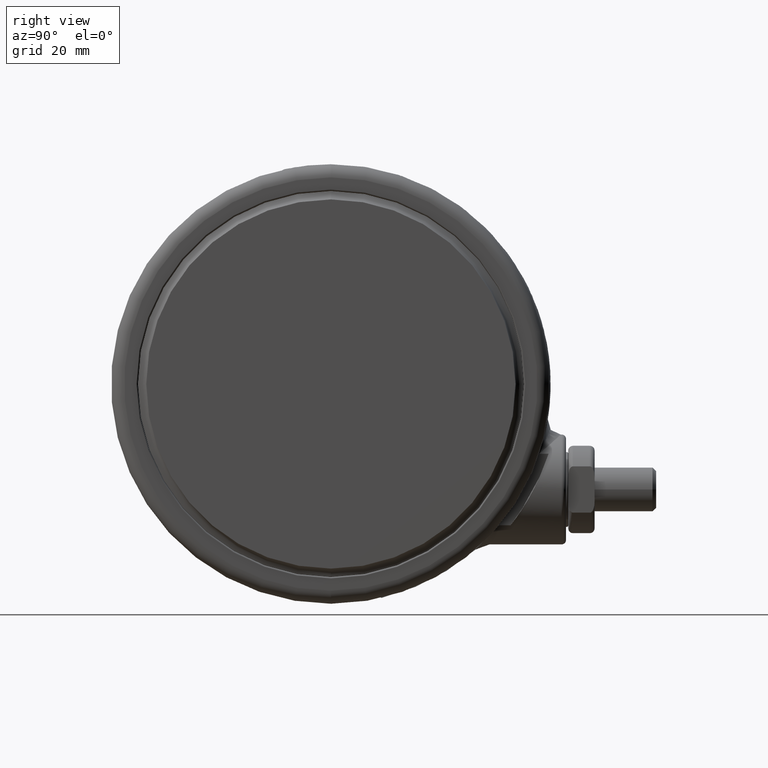
[diagram: clean part render]
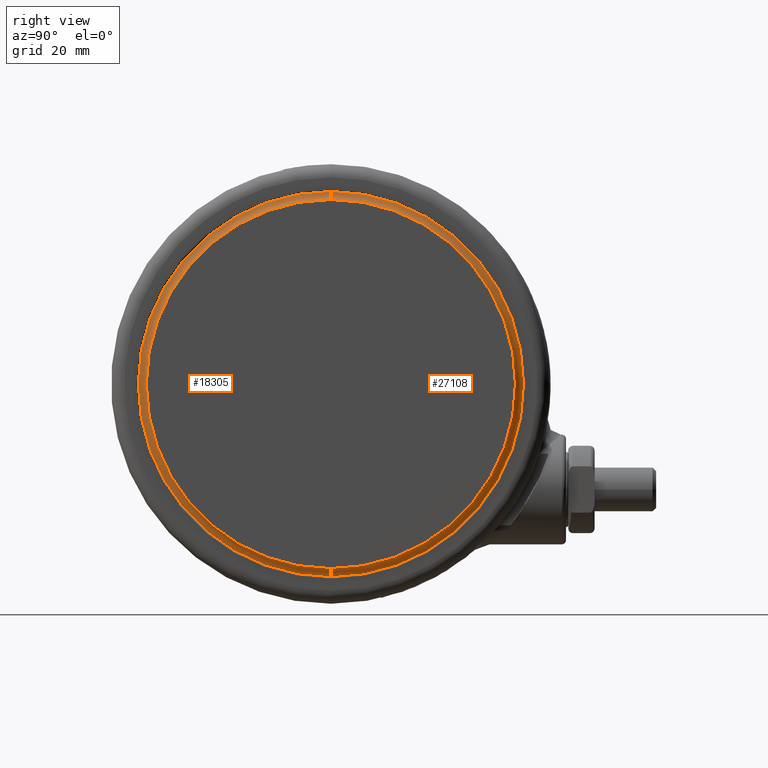
[diagram: same view with one multi-face feature highlighted, each face labeled with its STEP entity id]
A machine part, right view. The highlighted faces form ONE feature: a constant-radius fillet chain: 2 tangent blend faces with common blend radius 2.0507 mm. The faces share edges in the B-rep.
Their STEP definitions:
[1] entity #27108 (Torus):
#862 = DIRECTION ( 'NONE',  ( 1.000000000000000000, 0.0000000000000000000, 0.0000000000000000000 ) ) ;
#1101 = ORIENTED_EDGE ( 'NONE', *, *, #31830, .T. ) ;
#2268 = CIRCLE ( 'NONE', #9751, 43.81162395321010200 ) ;
#2302 = CARTESIAN_POINT ( 'NONE',  ( 0.0000000000000000000, 0.0000000000000000000, -2.091591727423864900 ) ) ;
#2334 = DIRECTION ( 'NONE',  ( 0.0000000000000000000, 0.0000000000000000000, -1.000000000000000000 ) ) ;
#4813 = DIRECTION ( 'NONE',  ( 1.000000000000000000, 0.0000000000000000000, 0.0000000000000000000 ) ) ;
#6901 = DIRECTION ( 'NONE',  ( 1.224646799147353200E-016, 1.000000000000000000, -0.0000000000000000000 ) ) ;
#7078 = CIRCLE ( 'NONE', #26584, 2.050731300344620100 ) ;
#7131 = EDGE_CURVE ( 'NONE', #26020, #19151, #31750, .T. ) ;
#7674 = CARTESIAN_POINT ( 'NONE',  ( 41.99926869965538100, 0.0000000000000000000, -0.05476190476190365100 ) ) ;
#8019 = CARTESIAN_POINT ( 'NONE',  ( -41.99926869965538100, 5.143426997956257600E-015, -0.05476190476190365100 ) ) ;
#8173 = ORIENTED_EDGE ( 'NONE', *, *, #29751, .T. ) ;
#8562 = VERTEX_POINT ( 'NONE', #21856 ) ;
#8788 = VERTEX_POINT ( 'NONE', #11508 ) ;
#8854 = AXIS2_PLACEMENT_3D ( 'NONE', #21831, #6901, #24345 ) ;
#9390 = EDGE_CURVE ( 'NONE', #19151, #8562, #28053, .T. ) ;
#9751 = AXIS2_PLACEMENT_3D ( 'NONE', #2302, #19745, #4813 ) ;
#10203 = TOROIDAL_SURFACE ( 'NONE', #28974, 44.04999999999999700, 2.050731300344620100 ) ;
#11508 = CARTESIAN_POINT ( 'NONE',  ( 43.81162395316311400, 0.0000000000000000000, -2.091591727423864900 ) ) ;
#15817 = DIRECTION ( 'NONE',  ( 0.0000000000000000000, 0.0000000000000000000, 1.000000000000000000 ) ) ;
#16854 = FACE_OUTER_BOUND ( 'NONE', #21901, .T. ) ;
#17278 = DIRECTION ( 'NONE',  ( 0.0000000000000000000, -1.000000000000000000, 0.0000000000000000000 ) ) ;
#17680 = ORIENTED_EDGE ( 'NONE', *, *, #7131, .F. ) ;
#17931 = CARTESIAN_POINT ( 'NONE',  ( 0.0000000000000000000, 0.0000000000000000000, -0.05476190476190339500 ) ) ;
#18819 = AXIS2_PLACEMENT_3D ( 'NONE', #30774, #15817, #862 ) ;
#19151 = VERTEX_POINT ( 'NONE', #8019 ) ;
#19745 = DIRECTION ( 'NONE',  ( 0.0000000000000000000, 0.0000000000000000000, 1.000000000000000000 ) ) ;
#20420 = DIRECTION ( 'NONE',  ( 1.000000000000000000, 0.0000000000000000000, 0.0000000000000000000 ) ) ;
#21831 = CARTESIAN_POINT ( 'NONE',  ( -44.04999999999999700, 5.394569150244090700E-015, -0.05476190476190339500 ) ) ;
#21856 = CARTESIAN_POINT ( 'NONE',  ( -43.81162395316311400, 5.365376503968872300E-015, -2.091591727423864900 ) ) ;
#21901 = EDGE_LOOP ( 'NONE', ( #17680, #8173, #1101, #24099 ) ) ;
#24099 = ORIENTED_EDGE ( 'NONE', *, *, #9390, .F. ) ;
#24345 = DIRECTION ( 'NONE',  ( -1.000000000000000000, 1.224646799147356900E-016, 0.0000000000000000000 ) ) ;
#25243 = DIRECTION ( 'NONE',  ( 0.0000000000000000000, 0.0000000000000000000, 1.000000000000000000 ) ) ;
#26020 = VERTEX_POINT ( 'NONE', #7674 ) ;
#26584 = AXIS2_PLACEMENT_3D ( 'NONE', #32260, #17278, #2334 ) ;
#27108 = ADVANCED_FACE ( 'NONE', ( #16854 ), #10203, .F. ) ;
#28053 = CIRCLE ( 'NONE', #8854, 2.050731300344617500 ) ;
#28974 = AXIS2_PLACEMENT_3D ( 'NONE', #17931, #25243, #20420 ) ;
#29751 = EDGE_CURVE ( 'NONE', #26020, #8788, #7078, .T. ) ;
#30774 = CARTESIAN_POINT ( 'NONE',  ( 0.0000000000000000000, 0.0000000000000000000, -0.05476190476190365100 ) ) ;
#31750 = CIRCLE ( 'NONE', #18819, 41.99926869965538100 ) ;
#31830 = EDGE_CURVE ( 'NONE', #8788, #8562, #2268, .T. ) ;
#32260 = CARTESIAN_POINT ( 'NONE',  ( 44.04999999999999700, 0.0000000000000000000, -0.05476190476190339500 ) ) ;
[2] entity #18305 (Torus):
#2334 = DIRECTION ( 'NONE',  ( 0.0000000000000000000, 0.0000000000000000000, -1.000000000000000000 ) ) ;
#3364 = EDGE_CURVE ( 'NONE', #8562, #8788, #30400, .T. ) ;
#3438 = CARTESIAN_POINT ( 'NONE',  ( 0.0000000000000000000, 0.0000000000000000000, -0.05476190476190365100 ) ) ;
#5953 = DIRECTION ( 'NONE',  ( 1.000000000000000000, 0.0000000000000000000, 0.0000000000000000000 ) ) ;
#6901 = DIRECTION ( 'NONE',  ( 1.224646799147353200E-016, 1.000000000000000000, -0.0000000000000000000 ) ) ;
#7078 = CIRCLE ( 'NONE', #26584, 2.050731300344620100 ) ;
#7632 = DIRECTION ( 'NONE',  ( 0.0000000000000000000, 0.0000000000000000000, 1.000000000000000000 ) ) ;
#7674 = CARTESIAN_POINT ( 'NONE',  ( 41.99926869965538100, 0.0000000000000000000, -0.05476190476190365100 ) ) ;
#7704 = TOROIDAL_SURFACE ( 'NONE', #29516, 44.04999999999999700, 2.050731300344620100 ) ;
#8019 = CARTESIAN_POINT ( 'NONE',  ( -41.99926869965538100, 5.143426997956257600E-015, -0.05476190476190365100 ) ) ;
#8562 = VERTEX_POINT ( 'NONE', #21856 ) ;
#8630 = EDGE_CURVE ( 'NONE', #19151, #26020, #30072, .T. ) ;
#8788 = VERTEX_POINT ( 'NONE', #11508 ) ;
#8854 = AXIS2_PLACEMENT_3D ( 'NONE', #21831, #6901, #24345 ) ;
#9390 = EDGE_CURVE ( 'NONE', #19151, #8562, #28053, .T. ) ;
#11433 = DIRECTION ( 'NONE',  ( 0.0000000000000000000, 0.0000000000000000000, 1.000000000000000000 ) ) ;
#11508 = CARTESIAN_POINT ( 'NONE',  ( 43.81162395316311400, 0.0000000000000000000, -2.091591727423864900 ) ) ;
#14225 = EDGE_LOOP ( 'NONE', ( #30651, #23462, #25626, #28313 ) ) ;
#15115 = FACE_OUTER_BOUND ( 'NONE', #14225, .T. ) ;
#17278 = DIRECTION ( 'NONE',  ( 0.0000000000000000000, -1.000000000000000000, 0.0000000000000000000 ) ) ;
#18305 = ADVANCED_FACE ( 'NONE', ( #15115 ), #7704, .F. ) ;
#18855 = CARTESIAN_POINT ( 'NONE',  ( 0.0000000000000000000, 0.0000000000000000000, -0.05476190476190339500 ) ) ;
#19151 = VERTEX_POINT ( 'NONE', #8019 ) ;
#20871 = DIRECTION ( 'NONE',  ( 0.0000000000000000000, 0.0000000000000000000, 1.000000000000000000 ) ) ;
#21831 = CARTESIAN_POINT ( 'NONE',  ( -44.04999999999999700, 5.394569150244090700E-015, -0.05476190476190339500 ) ) ;
#21856 = CARTESIAN_POINT ( 'NONE',  ( -43.81162395316311400, 5.365376503968872300E-015, -2.091591727423864900 ) ) ;
#22591 = CARTESIAN_POINT ( 'NONE',  ( 0.0000000000000000000, 0.0000000000000000000, -2.091591727423864900 ) ) ;
#23462 = ORIENTED_EDGE ( 'NONE', *, *, #9390, .T. ) ;
#24345 = DIRECTION ( 'NONE',  ( -1.000000000000000000, 1.224646799147356900E-016, 0.0000000000000000000 ) ) ;
#25084 = DIRECTION ( 'NONE',  ( 1.000000000000000000, 0.0000000000000000000, 0.0000000000000000000 ) ) ;
#25626 = ORIENTED_EDGE ( 'NONE', *, *, #3364, .T. ) ;
#26020 = VERTEX_POINT ( 'NONE', #7674 ) ;
#26443 = AXIS2_PLACEMENT_3D ( 'NONE', #22591, #7632, #25084 ) ;
#26584 = AXIS2_PLACEMENT_3D ( 'NONE', #32260, #17278, #2334 ) ;
#28053 = CIRCLE ( 'NONE', #8854, 2.050731300344617500 ) ;
#28313 = ORIENTED_EDGE ( 'NONE', *, *, #29751, .F. ) ;
#28882 = DIRECTION ( 'NONE',  ( 1.000000000000000000, 0.0000000000000000000, 0.0000000000000000000 ) ) ;
#29516 = AXIS2_PLACEMENT_3D ( 'NONE', #18855, #11433, #28882 ) ;
#29751 = EDGE_CURVE ( 'NONE', #26020, #8788, #7078, .T. ) ;
#30072 = CIRCLE ( 'NONE', #30787, 41.99926869965538100 ) ;
#30400 = CIRCLE ( 'NONE', #26443, 43.81162395321010200 ) ;
#30651 = ORIENTED_EDGE ( 'NONE', *, *, #8630, .F. ) ;
#30787 = AXIS2_PLACEMENT_3D ( 'NONE', #3438, #20871, #5953 ) ;
#32260 = CARTESIAN_POINT ( 'NONE',  ( 44.04999999999999700, 0.0000000000000000000, -0.05476190476190339500 ) ) ;